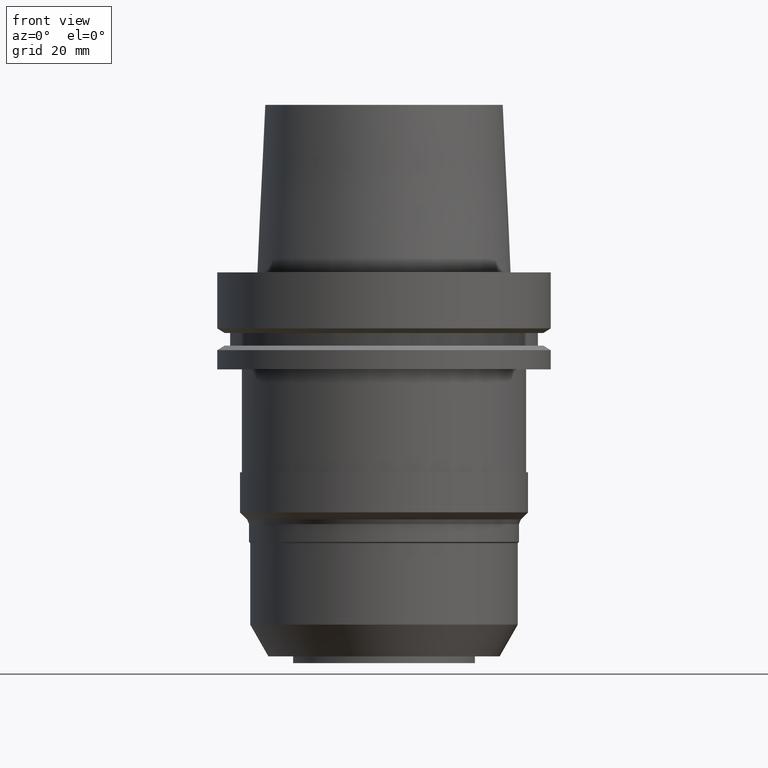
[diagram: clean part render]
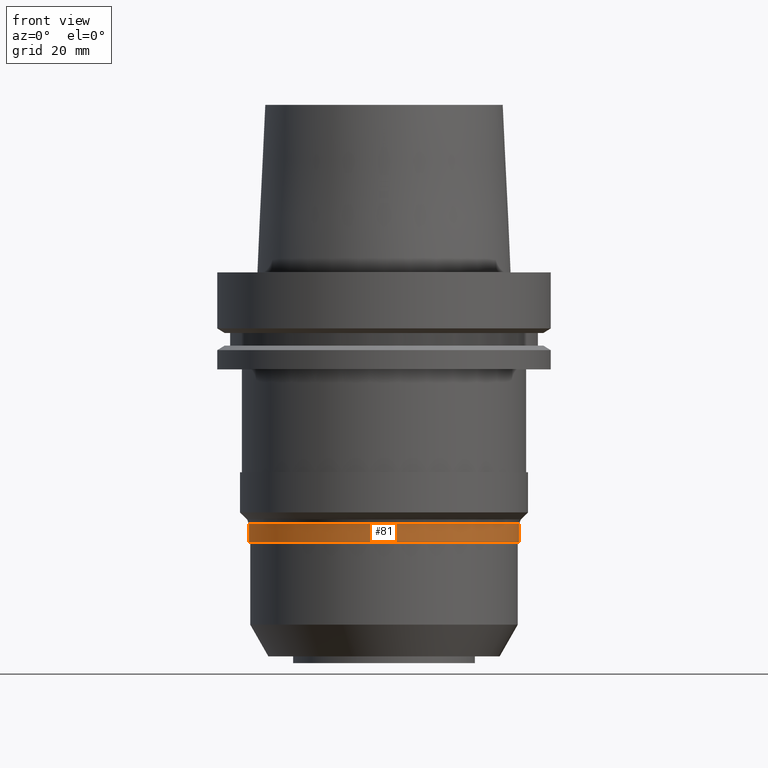
[diagram: same view with one face highlighted and labeled with its STEP entity id]
A machine part, front view. The second image highlights one B-rep face of the part: STEP entity #81.
In plain terms, the highlighted cylindrical surface (bore or boss wall) has radius 40.35 mm, axis along (0, 0, -1).
Its self-contained STEP definition (entity closure, byte-faithful):
#81=ADVANCED_FACE('Unnamed[1]',(#219,#220),#221,.T.);
#171=EDGE_CURVE('Unnamed[1]',#362,#362,#363,.T.);
#181=EDGE_CURVE('Unnamed[1]',#378,#378,#379,.T.);
#219=FACE_BOUND('',#412,.T.);
#220=FACE_BOUND('',#413,.T.);
#221=CYLINDRICAL_SURFACE('',#414,40.3500000000002);
#362=VERTEX_POINT('',#591);
#363=CIRCLE('',#592,40.3500000000003);
#378=VERTEX_POINT('',#611);
#379=CIRCLE('',#612,40.3500000000001);
#412=EDGE_LOOP('',(#636));
#413=EDGE_LOOP('',(#637));
#414=AXIS2_PLACEMENT_3D('',#638,#639,#640);
#591=CARTESIAN_POINT('',(4.60335100716261E-015,40.3500000000003,-75.1784271247455));
#592=AXIS2_PLACEMENT_3D('',#798,#799,#800);
#611=CARTESIAN_POINT('',(4.92920336656809E-015,40.3500000000001,-80.4999999999999));
#612=AXIS2_PLACEMENT_3D('',#816,#817,#818);
#636=ORIENTED_EDGE('',*,*,#181,.F.);
#637=ORIENTED_EDGE('',*,*,#171,.T.);
#638=CARTESIAN_POINT('',(4.76627718686535E-015,9.5325543737307E-015,-77.8392135623727));
#639=DIRECTION('',(6.12323399573677E-017,1.22464679914707E-016,-1.0));
#640=DIRECTION('',(-1.232595164408E-032,1.0,1.22464679914707E-016));
#798=CARTESIAN_POINT('',(4.60335100716261E-015,9.20670201432521E-015,-75.1784271247455));
#799=DIRECTION('',(6.12323399573677E-017,1.22464679914706E-016,-1.0));
#800=DIRECTION('',(-1.232595164408E-032,1.0,1.22464679914706E-016));
#816=CARTESIAN_POINT('',(4.92920336656809E-015,9.85840673313618E-015,-80.4999999999999));
#817=DIRECTION('',(6.12323399573677E-017,1.22464679914707E-016,-1.0));
#818=DIRECTION('',(-1.23259516440801E-032,1.0,1.22464679914707E-016));